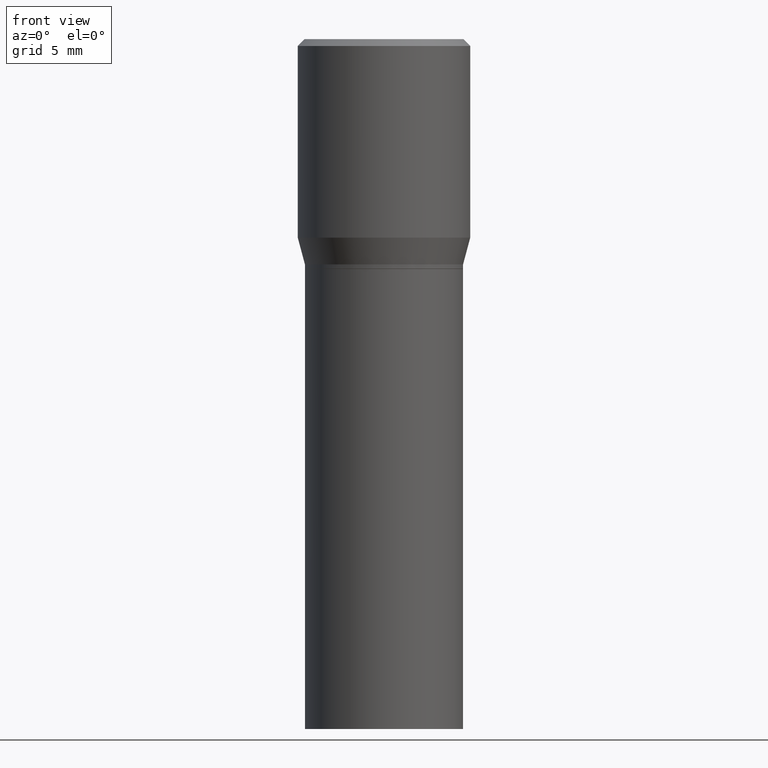
[diagram: clean part render]
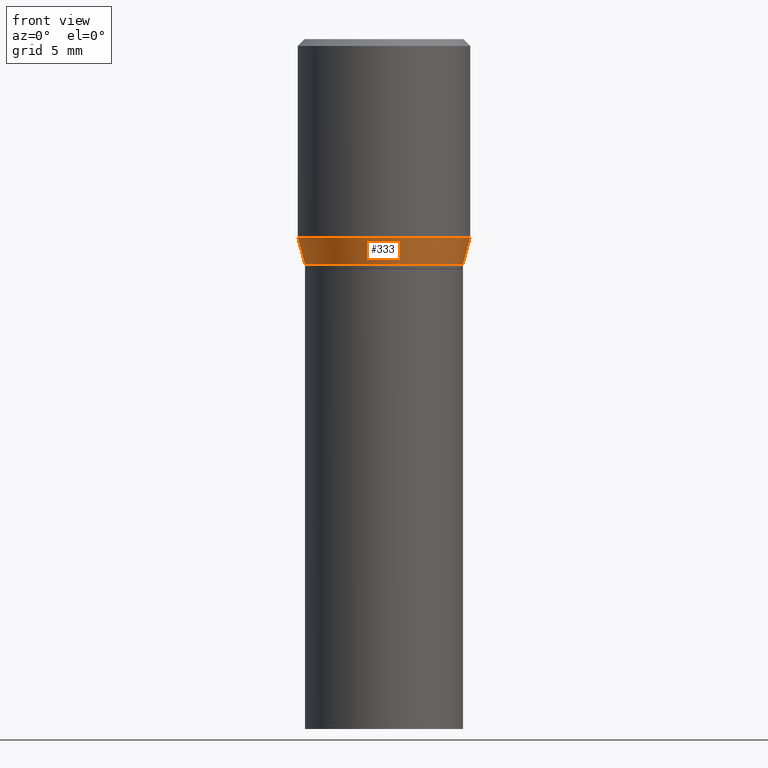
[diagram: same view with one face highlighted and labeled with its STEP entity id]
A machine part, front view. The second image highlights one B-rep face of the part: STEP entity #333.
In plain terms, the highlighted conical surface has half-angle 15 deg.
Its self-contained STEP definition (entity closure, byte-faithful):
#15 = CARTESIAN_POINT ( 'NONE',  ( 0.1718999999999999695, -2.911197140327410581E-15, -0.4900000000000001021 ) ) ;
#19 = EDGE_CURVE ( 'NONE', #220, #284, #459, .T. ) ;
#37 = ORIENTED_EDGE ( 'NONE', *, *, #281, .T. ) ;
#57 = DIRECTION ( 'NONE',  ( -2.445468806185136597E-29, 3.491481338843145583E-15, 1.000000000000000000 ) ) ;
#69 = DIRECTION ( 'NONE',  ( 1.000000000000000000, -6.982962677686265922E-15, 0.000000000000000000 ) ) ;
#71 = CARTESIAN_POINT ( 'NONE',  ( 1.055904539235796751E-29, -1.507551838329378850E-15, -0.4317800074019257361 ) ) ;
#80 = DIRECTION ( 'NONE',  ( 0.2588190451025216277, 1.565188264969619995E-15, 0.9659258262890679791 ) ) ;
#98 = EDGE_CURVE ( 'NONE', #220, #310, #335, .T. ) ;
#124 = DIRECTION ( 'NONE',  ( -2.445468806185136597E-29, 3.491481338843145583E-15, 1.000000000000000000 ) ) ;
#125 = CARTESIAN_POINT ( 'NONE',  ( 1.198279715030717173E-29, -1.710825856033141537E-15, -0.4900000000000001021 ) ) ;
#130 = EDGE_CURVE ( 'NONE', #284, #350, #289, .T. ) ;
#152 = CARTESIAN_POINT ( 'NONE',  ( -0.1875000000000000278, -1.752842087791908777E-16, -0.4317800074019257361 ) ) ;
#164 = CARTESIAN_POINT ( 'NONE',  ( -0.1718999999999999695, -4.894028932615295339E-16, -0.4900000000000001021 ) ) ;
#191 = AXIS2_PLACEMENT_3D ( 'NONE', #125, #124, #383 ) ;
#205 = DIRECTION ( 'NONE',  ( -0.2588190451025216277, 5.211531920934551831E-15, 0.9659258262890679791 ) ) ;
#206 = AXIS2_PLACEMENT_3D ( 'NONE', #71, #242, #69 ) ;
#220 = VERTEX_POINT ( 'NONE', #317 ) ;
#228 = VECTOR ( 'NONE', #205, 39.37007874015748143 ) ;
#242 = DIRECTION ( 'NONE',  ( -2.445468806185136597E-29, 3.491481338843145583E-15, 1.000000000000000000 ) ) ;
#248 = LINE ( 'NONE', #15, #387 ) ;
#253 = DIRECTION ( 'NONE',  ( 1.000000000000000000, -6.982962677686266711E-15, 0.000000000000000000 ) ) ;
#263 = CONICAL_SURFACE ( 'NONE', #445, 0.1718999999999999695, 0.2617993877991502960 ) ;
#281 = EDGE_CURVE ( 'NONE', #310, #350, #248, .T. ) ;
#284 = VERTEX_POINT ( 'NONE', #152 ) ;
#286 = ORIENTED_EDGE ( 'NONE', *, *, #98, .T. ) ;
#289 = CIRCLE ( 'NONE', #206, 0.1875000000000000278 ) ;
#310 = VERTEX_POINT ( 'NONE', #371 ) ;
#317 = CARTESIAN_POINT ( 'NONE',  ( -0.1718999999999999695, -3.323435510203601689E-16, -0.4900000000000001021 ) ) ;
#333 = ADVANCED_FACE ( 'NONE', ( #441 ), #263, .T. ) ;
#335 = CIRCLE ( 'NONE', #191, 0.1718999999999999695 ) ;
#350 = VERTEX_POINT ( 'NONE', #361 ) ;
#361 = CARTESIAN_POINT ( 'NONE',  ( 0.1875000000000000278, -2.816857340395553661E-15, -0.4317800074019257361 ) ) ;
#366 = EDGE_LOOP ( 'NONE', ( #373, #286, #37, #443 ) ) ;
#371 = CARTESIAN_POINT ( 'NONE',  ( 0.1718999999999999695, -2.911197140327410581E-15, -0.4900000000000001021 ) ) ;
#373 = ORIENTED_EDGE ( 'NONE', *, *, #19, .F. ) ;
#383 = DIRECTION ( 'NONE',  ( 1.000000000000000000, -6.982962677686266711E-15, 0.000000000000000000 ) ) ;
#387 = VECTOR ( 'NONE', #80, 39.37007874015748143 ) ;
#441 = FACE_OUTER_BOUND ( 'NONE', #366, .T. ) ;
#443 = ORIENTED_EDGE ( 'NONE', *, *, #130, .F. ) ;
#445 = AXIS2_PLACEMENT_3D ( 'NONE', #450, #57, #253 ) ;
#450 = CARTESIAN_POINT ( 'NONE',  ( 1.198279715030717173E-29, -1.710825856033141537E-15, -0.4900000000000001021 ) ) ;
#459 = LINE ( 'NONE', #164, #228 ) ;